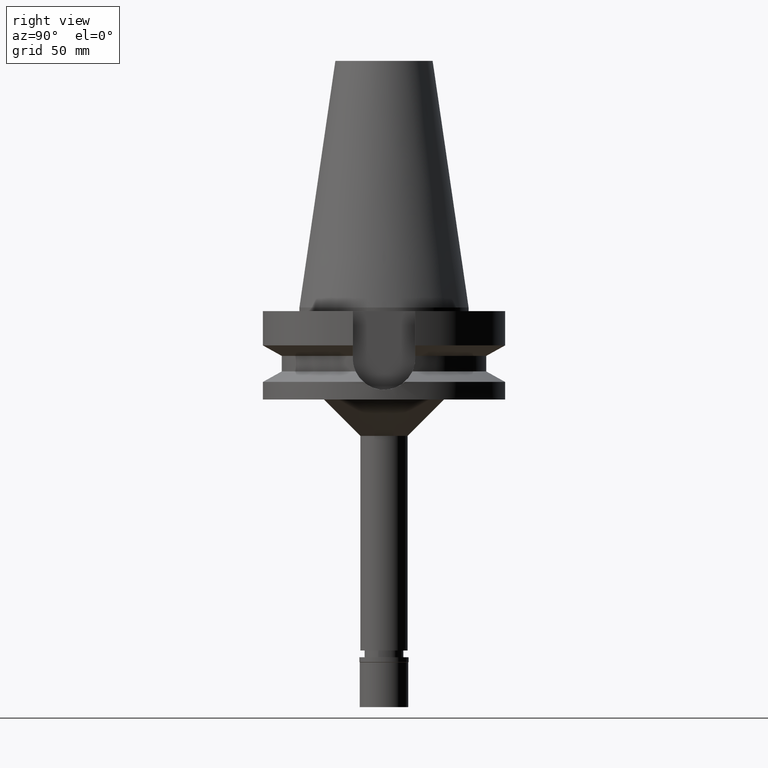
[diagram: clean part render]
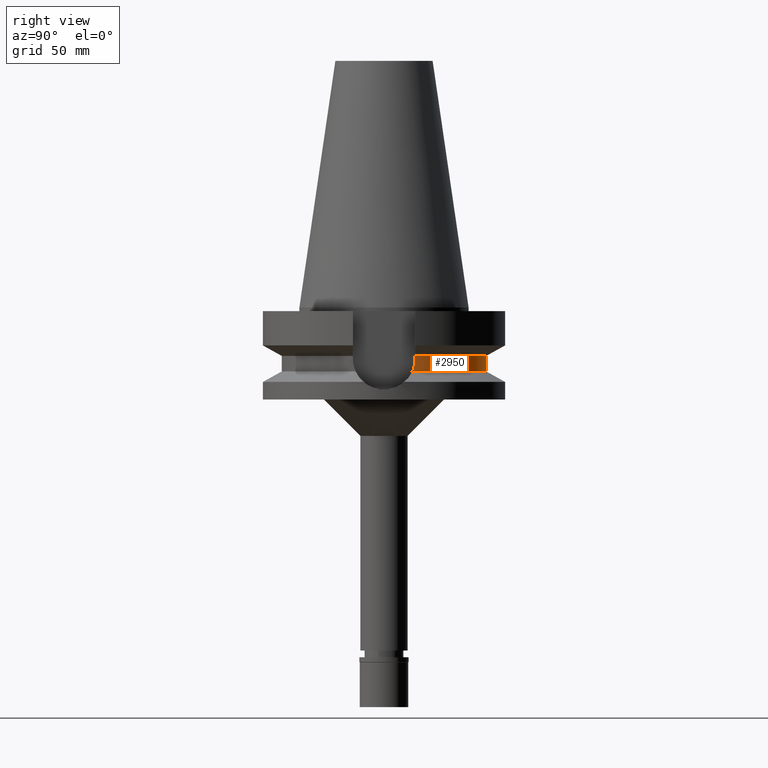
[diagram: same view with one face highlighted and labeled with its STEP entity id]
A machine part, right view. The second image highlights one B-rep face of the part: STEP entity #2950.
In plain terms, the highlighted cylindrical surface (partial cylindrical patch) has radius 42.5 mm, axis along (0, 0, -1).
Its self-contained STEP definition (entity closure, byte-faithful):
#74 = CARTESIAN_POINT ( 'NONE',  ( -40.85052569294000335, 11.72538061688000077, -26.40718074535000426 ) ) ;
#92 = CARTESIAN_POINT ( 'NONE',  ( -40.51083188482000708, 12.85000000000001918, -21.59155814776823235 ) ) ;
#285 = CARTESIAN_POINT ( 'NONE',  ( 40.51083188481999997, 12.84999999999999964, -21.14999999999999858 ) ) ;
#316 = CARTESIAN_POINT ( 'NONE',  ( -40.51818746066845733, 12.82722055570913255, -22.03689885935567716 ) ) ;
#384 = B_SPLINE_CURVE_WITH_KNOTS ( 'NONE', 3,
 ( #1438, #1530, #1790, #2052, #1774, #2510, #2423, #1289, #2981, #1018, #2913, #2273, #729, #1270 ),
 .UNSPECIFIED., .F., .F.,
 ( 4, 2, 2, 1, 1, 2, 2, 4 ),
 ( 0.0000000000000000000, 0.2499999999999920619, 0.3749999999999889533, 0.4374999999999874545, 0.4687499999999865663, 0.4843749999999859557, 0.4999999999999853451, 1.000000000000000000 ),
 .UNSPECIFIED. ) ;
#430 = DIRECTION ( 'NONE',  ( 0.0000000000000000000, -1.000000000000000000, 0.0000000000000000000 ) ) ;
#468 = ORIENTED_EDGE ( 'NONE', *, *, #829, .F. ) ;
#480 = VECTOR ( 'NONE', #1263, 1000.000000000000227 ) ;
#487 = ORIENTED_EDGE ( 'NONE', *, *, #3125, .F. ) ;
#544 = CARTESIAN_POINT ( 'NONE',  ( -40.59737185188235031, 12.57410792978981462, -23.79858982319187177 ) ) ;
#558 = LINE ( 'NONE', #2581, #2685 ) ;
#561 = CARTESIAN_POINT ( 'NONE',  ( -40.73816994079598430, 12.11682134614811446, -25.53412886413605776 ) ) ;
#591 = CIRCLE ( 'NONE', #1244, 42.50000000000002132 ) ;
#594 = CARTESIAN_POINT ( 'NONE',  ( -40.54025418821384363, 12.75731235969285571, -22.70688809813407261 ) ) ;
#599 = EDGE_CURVE ( 'NONE', #756, #1076, #2479, .T. ) ;
#729 = CARTESIAN_POINT ( 'NONE',  ( 40.51083188481999287, 12.84999999999999964, -22.03309742073675537 ) ) ;
#756 = VERTEX_POINT ( 'NONE', #1558 ) ;
#781 = CARTESIAN_POINT ( 'NONE',  ( -40.58662879532096923, 12.60876850764078938, -23.62934185159354783 ) ) ;
#798 = CARTESIAN_POINT ( 'NONE',  ( -40.57496331174877469, 12.64632619882844189, -23.43376116601609382 ) ) ;
#815 = CARTESIAN_POINT ( 'NONE',  ( -40.54944865802443843, 12.72805685033412182, -22.93054388460652504 ) ) ;
#829 = EDGE_CURVE ( 'NONE', #2877, #2957, #558, .T. ) ;
#975 = VERTEX_POINT ( 'NONE', #1229 ) ;
#1018 = CARTESIAN_POINT ( 'NONE',  ( 40.60257244295487311, 12.55730800210168496, -23.87713024258036754 ) ) ;
#1044 = CARTESIAN_POINT ( 'NONE',  ( 0.0000000000000000000, 0.0000000000000000000, -26.40718074535000426 ) ) ;
#1065 = CARTESIAN_POINT ( 'NONE',  ( -40.65436097481651245, 12.39000951530815087, -24.66364262345140546 ) ) ;
#1076 = VERTEX_POINT ( 'NONE', #2914 ) ;
#1100 = AXIS2_PLACEMENT_3D ( 'NONE', #1044, #2803, #2774 ) ;
#1136 = DIRECTION ( 'NONE',  ( 9.390170942253792615E-07, 2.960342109197935954E-06, -0.9999999999951774132 ) ) ;
#1187 = DIRECTION ( 'NONE',  ( -0.9531960443486575674, 0.3023529411764863672, 0.0000000000000000000 ) ) ;
#1210 = FACE_OUTER_BOUND ( 'NONE', #1312, .T. ) ;
#1229 = CARTESIAN_POINT ( 'NONE',  ( 40.51083297203000200, 12.84999657246999938, -19.99284555851999912 ) ) ;
#1244 = AXIS2_PLACEMENT_3D ( 'NONE', #2132, #2441, #1187 ) ;
#1263 = DIRECTION ( 'NONE',  ( 9.395523002366738675E-07, -2.962029390682913821E-06, 0.9999999999951717511 ) ) ;
#1270 = CARTESIAN_POINT ( 'NONE',  ( 40.51083188481999997, 12.84999999999999964, -21.14999999999999858 ) ) ;
#1287 = ORIENTED_EDGE ( 'NONE', *, *, #2809, .F. ) ;
#1289 = CARTESIAN_POINT ( 'NONE',  ( 40.61157027093148031, 12.52820949425047026, -24.00859467745382148 ) ) ;
#1312 = EDGE_LOOP ( 'NONE', ( #468, #2626, #487, #1287, #2067, #1500 ) ) ;
#1321 = CARTESIAN_POINT ( 'NONE',  ( -40.51083188481999997, 12.84999999999999964, -21.14999999999999858 ) ) ;
#1425 = EDGE_CURVE ( 'NONE', #2957, #1076, #2708, .T. ) ;
#1438 = CARTESIAN_POINT ( 'NONE',  ( 40.85052569294000335, 11.72538061688000077, -26.40718074535000426 ) ) ;
#1447 = DIRECTION ( 'NONE',  ( 0.0000000000000000000, 0.0000000000000000000, -1.000000000000000000 ) ) ;
#1492 = LINE ( 'NONE', #285, #480 ) ;
#1500 = ORIENTED_EDGE ( 'NONE', *, *, #1425, .F. ) ;
#1528 = CARTESIAN_POINT ( 'NONE',  ( -40.59188688274389989, 12.59181081970429972, -23.71312563686031893 ) ) ;
#1530 = CARTESIAN_POINT ( 'NONE',  ( 40.79434733663426726, 11.92110265460875951, -25.97065107314824317 ) ) ;
#1558 = CARTESIAN_POINT ( 'NONE',  ( 40.85052569294000335, 11.72538061688000077, -26.40718074535000426 ) ) ;
#1771 = CARTESIAN_POINT ( 'NONE',  ( -40.59544973979548388, 12.58031391754228423, -23.76897202841965395 ) ) ;
#1774 = CARTESIAN_POINT ( 'NONE',  ( 40.66327750826377496, 12.35976744503744662, -24.67240287687921452 ) ) ;
#1790 = CARTESIAN_POINT ( 'NONE',  ( 40.74530521662314442, 12.08734525800560355, -25.53455946903086726 ) ) ;
#1803 = AXIS2_PLACEMENT_3D ( 'NONE', #2686, #1447, #430 ) ;
#2052 = CARTESIAN_POINT ( 'NONE',  ( 40.68244639104836580, 12.29666286615228721, -24.88711474765173648 ) ) ;
#2067 = ORIENTED_EDGE ( 'NONE', *, *, #599, .T. ) ;
#2112 = EDGE_CURVE ( 'NONE', #2877, #975, #591, .T. ) ;
#2132 = CARTESIAN_POINT ( 'NONE',  ( 0.0000000000000000000, 1.006319759053999930E-14, -19.99281925464999787 ) ) ;
#2273 = CARTESIAN_POINT ( 'NONE',  ( 40.54025138676031759, 12.75862549541255042, -22.93152005434224705 ) ) ;
#2423 = CARTESIAN_POINT ( 'NONE',  ( 40.62483067706675399, 12.48524489601930476, -24.19332376313167998 ) ) ;
#2441 = DIRECTION ( 'NONE',  ( 0.0000000000000000000, 0.0000000000000000000, -1.000000000000000000 ) ) ;
#2475 = CARTESIAN_POINT ( 'NONE',  ( -40.56599870368348348, 12.67508435575842363, -23.26602303909836778 ) ) ;
#2479 = CIRCLE ( 'NONE', #1100, 42.50000000000000000 ) ;
#2510 = CARTESIAN_POINT ( 'NONE',  ( 40.63720027269733492, 12.44499102500596699, -24.35263434037272035 ) ) ;
#2581 = CARTESIAN_POINT ( 'NONE',  ( -40.51083297141000372, 12.84999657442999954, -19.99284554354000321 ) ) ;
#2626 = ORIENTED_EDGE ( 'NONE', *, *, #2112, .T. ) ;
#2636 = CYLINDRICAL_SURFACE ( 'NONE', #1803, 42.50000000000000000 ) ;
#2673 = VERTEX_POINT ( 'NONE', #2897 ) ;
#2685 = VECTOR ( 'NONE', #1136, 999.9999999999998863 ) ;
#2686 = CARTESIAN_POINT ( 'NONE',  ( 0.0000000000000000000, 2.629806536488999751E-14, 114.7399999999999949 ) ) ;
#2708 = B_SPLINE_CURVE_WITH_KNOTS ( 'NONE', 3,
 ( #1321, #92, #316, #594, #815, #2475, #798, #781, #1528, #1771, #544, #1065, #561, #74 ),
 .UNSPECIFIED., .F., .F.,
 ( 4, 2, 2, 1, 1, 2, 2, 4 ),
 ( 0.0000000000000000000, 0.2500000000000048850, 0.3750000000000073830, 0.4375000000000096034, 0.4687500000000108247, 0.4843750000000114353, 0.5000000000000119904, 1.000000000000000000 ),
 .UNSPECIFIED. ) ;
#2774 = DIRECTION ( 'NONE',  ( 0.0000000000000000000, 1.000000000000000000, 0.0000000000000000000 ) ) ;
#2803 = DIRECTION ( 'NONE',  ( 0.0000000000000000000, 0.0000000000000000000, 1.000000000000000000 ) ) ;
#2809 = EDGE_CURVE ( 'NONE', #756, #2673, #384, .T. ) ;
#2877 = VERTEX_POINT ( 'NONE', #3072 ) ;
#2897 = CARTESIAN_POINT ( 'NONE',  ( 40.51083188481999997, 12.84999999999999964, -21.14999999999999858 ) ) ;
#2913 = CARTESIAN_POINT ( 'NONE',  ( 40.60092910951219380, 12.56261850439502226, -23.85257851101207649 ) ) ;
#2914 = CARTESIAN_POINT ( 'NONE',  ( -40.85052569294000335, 11.72538061688000077, -26.40718074535000426 ) ) ;
#2950 = ADVANCED_FACE ( 'NONE', ( #1210 ), #2636, .T. ) ;
#2957 = VERTEX_POINT ( 'NONE', #3126 ) ;
#2981 = CARTESIAN_POINT ( 'NONE',  ( 40.60613812303787995, 12.54578004800032431, -23.92968102609641079 ) ) ;
#3072 = CARTESIAN_POINT ( 'NONE',  ( -40.51083188481999997, 12.84999999999999964, -19.99281925464999787 ) ) ;
#3125 = EDGE_CURVE ( 'NONE', #2673, #975, #1492, .T. ) ;
#3126 = CARTESIAN_POINT ( 'NONE',  ( -40.51083188481999997, 12.84999999999999964, -21.14999999999999858 ) ) ;